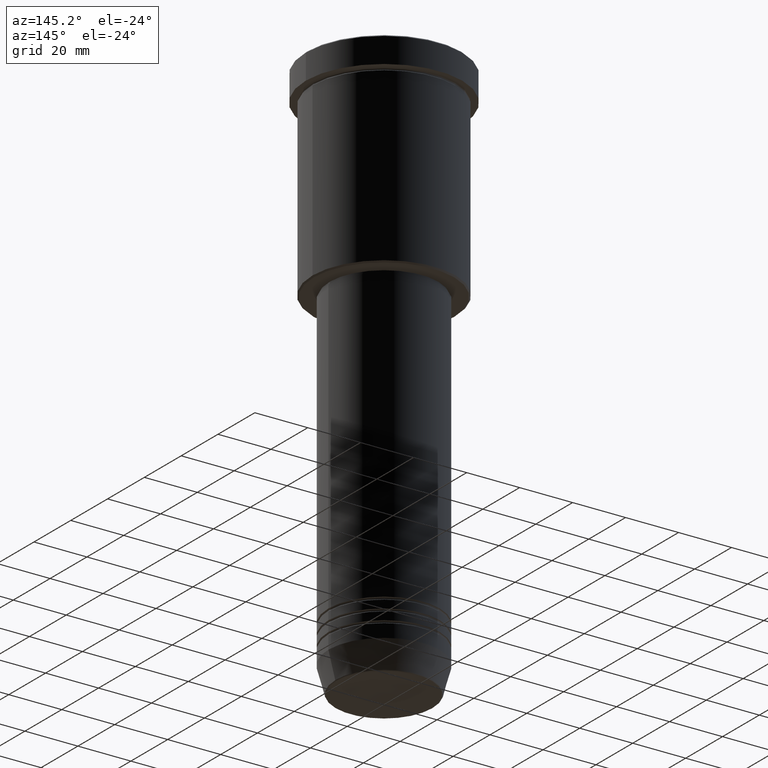
[diagram: clean part render]
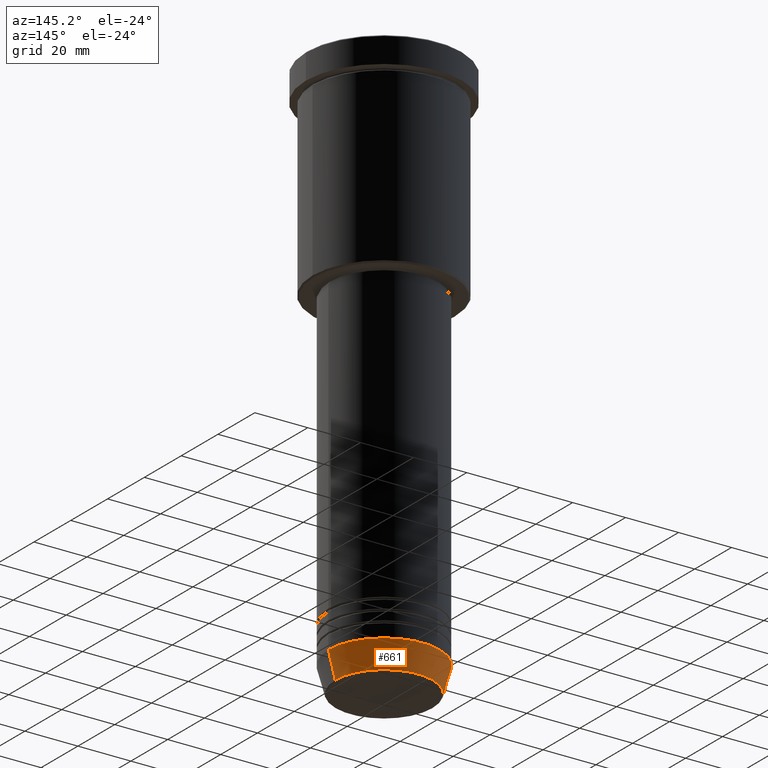
[diagram: same view with one face highlighted and labeled with its STEP entity id]
A machine part, auxiliary view. The second image highlights one B-rep face of the part: STEP entity #661.
In plain terms, the highlighted conical surface has half-angle 15 deg.
Its self-contained STEP definition (entity closure, byte-faithful):
#40 = ORIENTED_EDGE ( 'NONE', *, *, #190, .T. ) ;
#49 = EDGE_CURVE ( 'NONE', #225, #320, #488, .T. ) ;
#68 = AXIS2_PLACEMENT_3D ( 'NONE', #127, #1022, #212 ) ;
#101 = CARTESIAN_POINT ( 'NONE',  ( 0.000000000000000000, 0.000000000000000000, -210.6294095225512990 ) ) ;
#112 = CARTESIAN_POINT ( 'NONE',  ( 0.000000000000000000, 0.000000000000000000, -201.0000000000000000 ) ) ;
#127 = CARTESIAN_POINT ( 'NONE',  ( 0.000000000000000000, 0.000000000000000000, -201.0000000000000000 ) ) ;
#136 = EDGE_CURVE ( 'NONE', #504, #1053, #468, .T. ) ;
#183 = CARTESIAN_POINT ( 'NONE',  ( 21.00000000000000000, 0.000000000000000000, -201.0000000000000000 ) ) ;
#190 = EDGE_CURVE ( 'NONE', #320, #1053, #389, .T. ) ;
#197 = AXIS2_PLACEMENT_3D ( 'NONE', #101, #353, #448 ) ;
#212 = DIRECTION ( 'NONE',  ( 1.000000000000000000, 0.000000000000000000, 0.000000000000000000 ) ) ;
#217 = VECTOR ( 'NONE', #649, 1000.000000000000114 ) ;
#225 = VERTEX_POINT ( 'NONE', #571 ) ;
#320 = VERTEX_POINT ( 'NONE', #446 ) ;
#352 = CARTESIAN_POINT ( 'NONE',  ( -21.00000000000000000, 2.571758278209441661E-15, -201.0000000000000000 ) ) ;
#353 = DIRECTION ( 'NONE',  ( -0.000000000000000000, -0.000000000000000000, 1.000000000000000000 ) ) ;
#362 = CONICAL_SURFACE ( 'NONE', #68, 21.00000000000000000, 0.2617993877991499074 ) ;
#389 = LINE ( 'NONE', #758, #217 ) ;
#446 = CARTESIAN_POINT ( 'NONE',  ( -18.41980749484383040, 2.413767053578267064E-15, -210.6294095225512990 ) ) ;
#448 = DIRECTION ( 'NONE',  ( 1.000000000000000000, 0.000000000000000000, 0.000000000000000000 ) ) ;
#468 = CIRCLE ( 'NONE', #901, 21.00000000000000000 ) ;
#488 = CIRCLE ( 'NONE', #197, 18.41980749484383040 ) ;
#500 = ORIENTED_EDGE ( 'NONE', *, *, #49, .T. ) ;
#502 = DIRECTION ( 'NONE',  ( -0.000000000000000000, -0.000000000000000000, 1.000000000000000000 ) ) ;
#504 = VERTEX_POINT ( 'NONE', #183 ) ;
#563 = LINE ( 'NONE', #1117, #1151 ) ;
#566 = DIRECTION ( 'NONE',  ( 1.000000000000000000, 0.000000000000000000, 0.000000000000000000 ) ) ;
#571 = CARTESIAN_POINT ( 'NONE',  ( 18.41980749484383040, 0.000000000000000000, -210.6294095225512990 ) ) ;
#644 = ORIENTED_EDGE ( 'NONE', *, *, #891, .F. ) ;
#649 = DIRECTION ( 'NONE',  ( -0.2588190451025211836, 3.169619151431770488E-17, 0.9659258262890680902 ) ) ;
#660 = FACE_OUTER_BOUND ( 'NONE', #863, .T. ) ;
#661 = ADVANCED_FACE ( 'NONE', ( #660 ), #362, .T. ) ;
#749 = DIRECTION ( 'NONE',  ( 0.2588190451025211836, 0.000000000000000000, 0.9659258262890680902 ) ) ;
#758 = CARTESIAN_POINT ( 'NONE',  ( -21.00000000000000000, 2.571758278209441661E-15, -201.0000000000000000 ) ) ;
#801 = ORIENTED_EDGE ( 'NONE', *, *, #136, .F. ) ;
#863 = EDGE_LOOP ( 'NONE', ( #500, #40, #801, #644 ) ) ;
#891 = EDGE_CURVE ( 'NONE', #225, #504, #563, .T. ) ;
#901 = AXIS2_PLACEMENT_3D ( 'NONE', #112, #502, #566 ) ;
#1022 = DIRECTION ( 'NONE',  ( -0.000000000000000000, -0.000000000000000000, 1.000000000000000000 ) ) ;
#1053 = VERTEX_POINT ( 'NONE', #352 ) ;
#1117 = CARTESIAN_POINT ( 'NONE',  ( 21.00000000000000000, 0.000000000000000000, -201.0000000000000000 ) ) ;
#1151 = VECTOR ( 'NONE', #749, 1000.000000000000114 ) ;